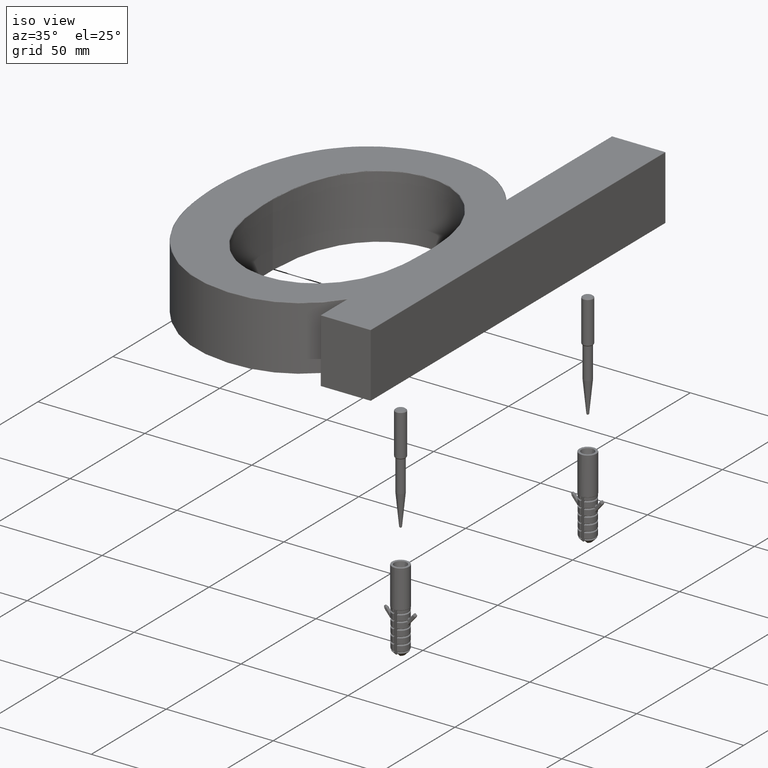
[diagram: clean part render]
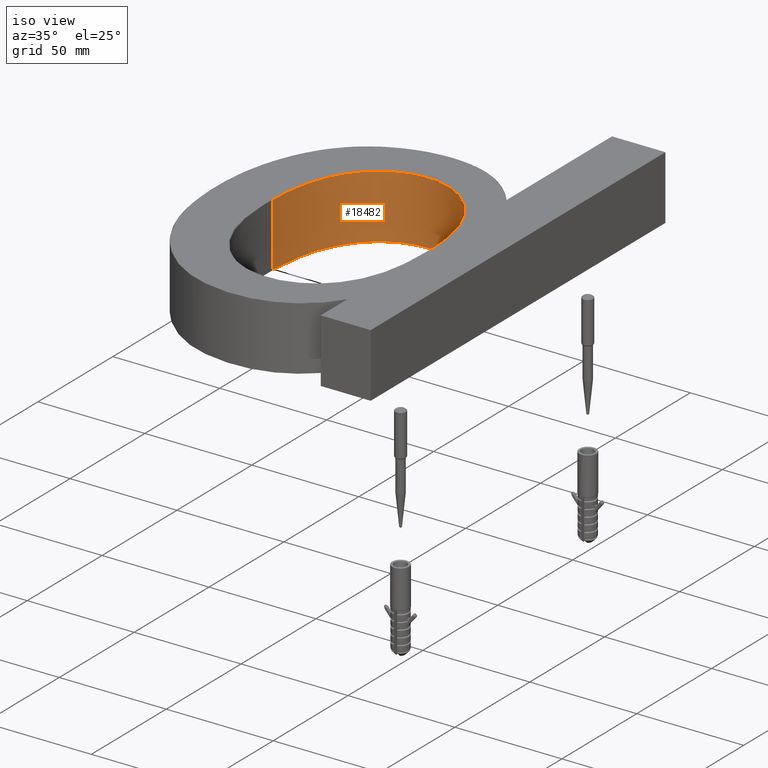
[diagram: same view with one face highlighted and labeled with its STEP entity id]
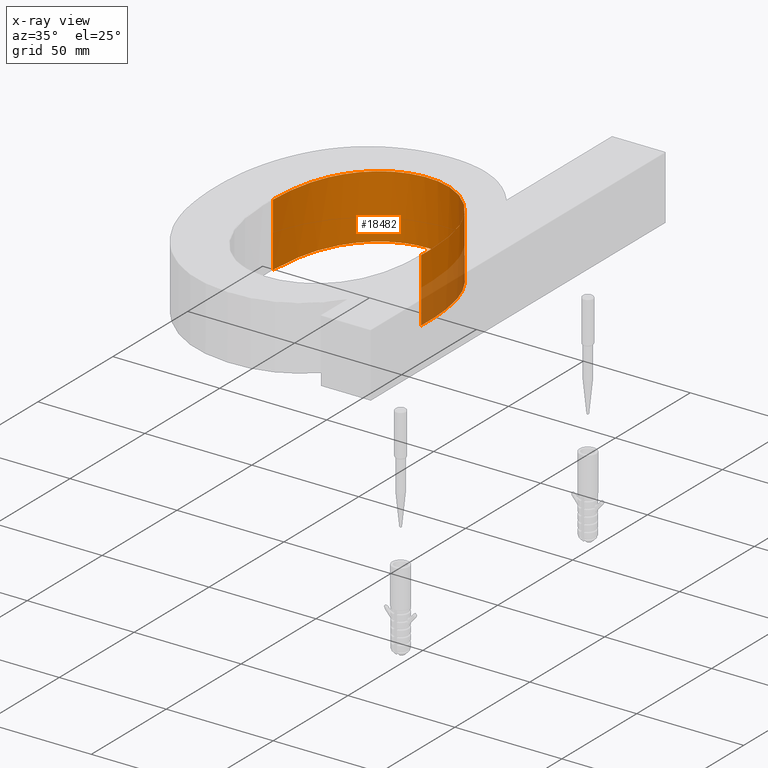
[diagram: x-ray of the same camera — body ghosted, the highlighted face saturated]
A machine part, iso view. The second image highlights one B-rep face of the part: STEP entity #18482.
The next image is the same camera in x-ray: the body ghosted, the highlighted face saturated — about 11% of this face is hidden behind the body in this view.
In plain terms, the highlighted face is a freeform B-spline surface patch.
Its self-contained STEP definition (entity closure, byte-faithful):
#195 = CARTESIAN_POINT ( 'NONE',  ( -88.55121358665108700, 78.92150280953875100, -28.00000000000000700 ) ) ;
#242 = CARTESIAN_POINT ( 'NONE',  ( -43.01471550697081600, 125.6372932712700000, 1.750000000000000000 ) ) ;
#346 = CARTESIAN_POINT ( 'NONE',  ( -13.13839991050411800, 74.32160863553029600, 1.750000000000000000 ) ) ;
#450 = CARTESIAN_POINT ( 'NONE',  ( -19.82097220692656900, 105.9758346695456600, 1.750000000000000200 ) ) ;
#651 = CARTESIAN_POINT ( 'NONE',  ( -85.93589010622399400, 96.76227666689362600, 1.750000000000000000 ) ) ;
#751 = CARTESIAN_POINT ( 'NONE',  ( -54.06665555420174500, 126.6566140659323200, 1.750000000000000200 ) ) ;
#780 = CARTESIAN_POINT ( 'NONE',  ( -13.21685557556140400, 67.69751859215078600, 2.000000000000000000 ) ) ;
#938 = CARTESIAN_POINT ( 'NONE',  ( -80.44095136586926700, 109.6073114590337700, 1.750000000000000000 ) ) ;
#1006 = CARTESIAN_POINT ( 'NONE',  ( -13.12877987927566500, 72.11315493876497800, 1.749999999999999800 ) ) ;
#1750 = CARTESIAN_POINT ( 'NONE',  ( -88.55121358665108700, 78.92150280953866600, -28.00000000000000400 ) ) ;
#1843 = CARTESIAN_POINT ( 'NONE',  ( -13.10140516814113600, 71.41197562951173000, -28.00000000000000000 ) ) ;
#2032 = CARTESIAN_POINT ( 'NONE',  ( -17.80088930035981700, 103.4445459096869800, -28.00000000000000000 ) ) ;
#2086 = CARTESIAN_POINT ( 'NONE',  ( -60.94026703437781100, 127.2949652679679100, 1.750000000000000200 ) ) ;
#2129 = CARTESIAN_POINT ( 'NONE',  ( -14.30222629124179300, 90.34252962186965900, -28.00000000000000000 ) ) ;
#2359 = VERTEX_POINT ( 'NONE', #18363 ) ;
#2507 = B_SPLINE_CURVE_WITH_KNOTS ( 'NONE', 3,
 ( #23917, #1750, #8579, #15555, #19853, #4171, #15253, #6317, #2032, #2129, #22042, #1843, #13395 ),
 .UNSPECIFIED., .F., .F.,
 ( 4, 1, 1, 1, 1, 1, 1, 1, 1, 1, 4 ),
 ( 0.4999999999999997800, 0.5255782494823841900, 0.5766113498136231600, 0.6444400147742848100, 0.7011712018983389200, 0.7680112470840235700, 0.8260361325642644500, 0.8804142102444568700, 0.9271135811354428400, 0.9623182922084826400, 1.000000000000000000 ),
 .UNSPECIFIED. ) ;
#2699 = CARTESIAN_POINT ( 'NONE',  ( -13.90062079166255100, 86.17424500894550500, 1.750000000000000000 ) ) ;
#2814 = CARTESIAN_POINT ( 'NONE',  ( -13.46024627776417800, 81.75166539391646800, 1.749999999999999800 ) ) ;
#2912 = CARTESIAN_POINT ( 'NONE',  ( -82.92607234473464900, 105.0232386596946600, 1.750000000000000000 ) ) ;
#3116 = CARTESIAN_POINT ( 'NONE',  ( -64.78461189895355700, 123.8700722752638200, 1.750000000000000400 ) ) ;
#3220 = CARTESIAN_POINT ( 'NONE',  ( -45.18499708231100700, 126.1467002325042700, 1.750000000000000400 ) ) ;
#3309 = CARTESIAN_POINT ( 'NONE',  ( -53.32335346094215800, 126.7071925692494400, 1.750000000000000200 ) ) ;
#3883 = FACE_OUTER_BOUND ( 'NONE', #25611, .T. ) ;
#4171 = CARTESIAN_POINT ( 'NONE',  ( -60.94026703437781100, 127.2949652679679100, -28.00000000000000000 ) ) ;
#4510 = CARTESIAN_POINT ( 'NONE',  ( -85.76485645599449000, 100.5757633288716600, -28.00000000000000700 ) ) ;
#4515 = VECTOR ( 'NONE', #4605, 1000.000000000000000 ) ;
#4604 = CARTESIAN_POINT ( 'NONE',  ( -41.67111236451760400, 127.2365687190322500, -28.00000000000000700 ) ) ;
#4605 = DIRECTION ( 'NONE',  ( -0.0000000000000000000, -0.0000000000000000000, -1.000000000000000000 ) ) ;
#4691 = CARTESIAN_POINT ( 'NONE',  ( -88.06419268513740000, 86.45725767295238000, 1.750000000000000200 ) ) ;
#4819 = EDGE_CURVE ( 'NONE', #21728, #12233, #27422, .T. ) ;
#4932 = CARTESIAN_POINT ( 'NONE',  ( -27.82628181259754300, 116.6275600547041100, 1.750000000000000000 ) ) ;
#5111 = CARTESIAN_POINT ( 'NONE',  ( -88.30363601657522600, 82.28296670657742600, 1.750000000000000700 ) ) ;
#5220 = CARTESIAN_POINT ( 'NONE',  ( -78.44617893125568700, 112.7276115713982100, 1.750000000000000000 ) ) ;
#5314 = CARTESIAN_POINT ( 'NONE',  ( -64.10127272805408400, 124.1759788565631200, 1.750000000000000400 ) ) ;
#5514 = CARTESIAN_POINT ( 'NONE',  ( -47.37338572465159800, 126.5268258478376400, 1.750000000000000200 ) ) ;
#5577 = CARTESIAN_POINT ( 'NONE',  ( -13.15689898831596800, 69.90514822404995200, 1.750000000000000200 ) ) ;
#5769 = ORIENTED_EDGE ( 'NONE', *, *, #22928, .T. ) ;
#6091 = EDGE_CURVE ( 'NONE', #2359, #17232, #12488, .T. ) ;
#6317 = CARTESIAN_POINT ( 'NONE',  ( -26.51978001778810800, 116.8647303100702000, -28.00000000000000000 ) ) ;
#6562 = CARTESIAN_POINT ( 'NONE',  ( -13.10140516814113500, 71.41197562951173000, -28.00000000000000700 ) ) ;
#6653 = CARTESIAN_POINT ( 'NONE',  ( -88.63366732251958500, 76.40187421192901200, -28.00000000000000400 ) ) ;
#6750 = CARTESIAN_POINT ( 'NONE',  ( -88.63366732251957100, 76.40187421192911200, -28.00000000000000700 ) ) ;
#6850 = CARTESIAN_POINT ( 'NONE',  ( -88.55121358665108700, 78.92150280953875100, 1.750000000000000200 ) ) ;
#6898 = CARTESIAN_POINT ( 'NONE',  ( -34.84176823809929100, 122.1200098886502700, 1.750000000000000400 ) ) ;
#7091 = CARTESIAN_POINT ( 'NONE',  ( -14.33905667323460000, 89.09833389076536000, 1.750000000000000000 ) ) ;
#7288 = CARTESIAN_POINT ( 'NONE',  ( -56.28087120961826200, 126.4300365453944200, 1.750000000000000400 ) ) ;
#7473 = CARTESIAN_POINT ( 'NONE',  ( -80.82436054409979000, 108.9718154044100200, 1.750000000000000000 ) ) ;
#7543 = CARTESIAN_POINT ( 'NONE',  ( -13.21685557556140400, 67.69751859215078600, 1.750000000000000000 ) ) ;
#7576 = CARTESIAN_POINT ( 'NONE',  ( -76.60443204387344500, 115.0429320464503700, 1.750000000000000400 ) ) ;
#7685 = CARTESIAN_POINT ( 'NONE',  ( -51.07723304446555800, 126.7567332380663300, 1.750000000000000700 ) ) ;
#7744 = CARTESIAN_POINT ( 'NONE',  ( -13.12630954120951500, 73.21729555870175000, 1.750000000000000000 ) ) ;
#8579 = CARTESIAN_POINT ( 'NONE',  ( -88.06419268513741400, 86.45725767295235200, -28.00000000000000400 ) ) ;
#8905 = CARTESIAN_POINT ( 'NONE',  ( -17.80088930035981700, 103.4445459096869800, 1.750000000000000200 ) ) ;
#9046 = CARTESIAN_POINT ( 'NONE',  ( -16.47040921325550000, 97.73502435951668600, 1.750000000000000000 ) ) ;
#9141 = CARTESIAN_POINT ( 'NONE',  ( -28.89753266846092900, 117.6456405621159300, 1.750000000000000400 ) ) ;
#9333 = CARTESIAN_POINT ( 'NONE',  ( -17.19266652730741600, 99.85181252878329900, 1.749999999999999800 ) ) ;
#9434 = CARTESIAN_POINT ( 'NONE',  ( -13.19749798426802200, 77.29929087022962600, 1.750000000000001300 ) ) ;
#9838 = CARTESIAN_POINT ( 'NONE',  ( -48.84650003490996500, 126.6789391259385600, 1.750000000000000400 ) ) ;
#9934 = CARTESIAN_POINT ( 'NONE',  ( -73.39208135593209200, 118.1850649822349300, 1.750000000000000200 ) ) ;
#11175 = CARTESIAN_POINT ( 'NONE',  ( -41.67111236451760400, 127.2365687190322500, 1.750000000000000200 ) ) ;
#11276 = CARTESIAN_POINT ( 'NONE',  ( -13.21685557556140400, 67.69751859215078600, -28.00000000000000700 ) ) ;
#11310 = B_SPLINE_SURFACE_WITH_KNOTS ( 'NONE', 3, 1, ( 
 ( #28949, #11276 ),
 ( #15901, #6562 ),
 ( #27020, #13645 ),
 ( #15817, #22662 ),
 ( #8905, #17788 ),
 ( #24635, #20013 ),
 ( #11175, #4604 ),
 ( #2086, #18171 ),
 ( #24917, #17980 ),
 ( #22283, #4510 ),
 ( #4691, #20308 ),
 ( #6850, #195 ),
 ( #20204, #6750 ) ),
 .UNSPECIFIED., .F., .F., .F.,
 ( 4, 1, 1, 1, 1, 1, 1, 1, 1, 1, 4 ),
 ( 2, 2 ),
 ( -2.659861220166703800E-011, 0.03768170779151740200, 0.07288641886455712900, 0.1195857897555431100, 0.1739638674357355300, 0.2319887529159764300, 0.2988287981016610800, 0.3555599852257151400, 0.4233886501863767800, 0.4744217505176158700, 0.4999999999999997800 ),
 ( 0.0000000000000000000, 1.000000000000000000 ),
 .UNSPECIFIED. ) ;
#11318 = CARTESIAN_POINT ( 'NONE',  ( -32.36823598354556000, 120.4512522147639100, 1.749999999999999800 ) ) ;
#11417 = CARTESIAN_POINT ( 'NONE',  ( -40.15631657302969200, 124.7339673897362500, 1.749999999999999300 ) ) ;
#11991 = CARTESIAN_POINT ( 'NONE',  ( -57.73620515979490600, 126.1797250306048700, 1.750000000000000200 ) ) ;
#12082 = CARTESIAN_POINT ( 'NONE',  ( -88.63366732251891700, 76.40187421194922000, 1.750000000000000000 ) ) ;
#12186 = CARTESIAN_POINT ( 'NONE',  ( -60.60426008020276400, 125.4758442451465800, 1.750000000000000400 ) ) ;
#12233 = VERTEX_POINT ( 'NONE', #19296 ) ;
#12488 = LINE ( 'NONE', #780, #13927 ) ;
#13000 = EDGE_CURVE ( 'NONE', #12233, #19932, #21735, .T. ) ;
#13395 = CARTESIAN_POINT ( 'NONE',  ( -13.21685557556140400, 67.69751859215078600, -27.99999999999999600 ) ) ;
#13592 = CARTESIAN_POINT ( 'NONE',  ( -32.98008073086001000, 120.8848758823305600, 1.750000000000000200 ) ) ;
#13645 = CARTESIAN_POINT ( 'NONE',  ( -13.06763622333071200, 78.60303425089597300, -28.00000000000000700 ) ) ;
#13927 = VECTOR ( 'NONE', #24691, 1000.000000000000000 ) ;
#14103 = CARTESIAN_POINT ( 'NONE',  ( -66.77273509365566900, 122.8688004271437800, 1.750000000000000200 ) ) ;
#14172 = CARTESIAN_POINT ( 'NONE',  ( -13.21685557556140400, 67.69751859215078600, -27.99999999999999600 ) ) ;
#14194 = CARTESIAN_POINT ( 'NONE',  ( -88.51023719977595800, 79.34046201009060400, 1.750000000000000400 ) ) ;
#14491 = CARTESIAN_POINT ( 'NONE',  ( -87.69243022122962800, 88.16445509971276800, 1.750000000000000200 ) ) ;
#14610 = ORIENTED_EDGE ( 'NONE', *, *, #13000, .T. ) ;
#14824 = B_SPLINE_CURVE_WITH_KNOTS ( 'NONE', 3,
 ( #7543, #23650, #5577, #1006, #7744, #23472 ),
 .UNSPECIFIED., .F., .F.,
 ( 4, 2, 4 ),
 ( 0.0000000000000000000, 0.003312277320597533500, 0.006624554641195067000 ),
 .UNSPECIFIED. ) ;
#15046 = ORIENTED_EDGE ( 'NONE', *, *, #4819, .T. ) ;
#15253 = CARTESIAN_POINT ( 'NONE',  ( -41.67111236451760400, 127.2365687190322500, -28.00000000000000000 ) ) ;
#15555 = CARTESIAN_POINT ( 'NONE',  ( -85.76485645599449000, 100.5757633288716600, -28.00000000000000000 ) ) ;
#15817 = CARTESIAN_POINT ( 'NONE',  ( -14.30222629124179300, 90.34252962186965900, 1.750000000000000200 ) ) ;
#15858 = CARTESIAN_POINT ( 'NONE',  ( -13.15469935459380800, 75.81037120470286100, 1.750000000000000200 ) ) ;
#15901 = CARTESIAN_POINT ( 'NONE',  ( -13.10140516814113500, 71.41197562951173000, 1.750000000000000200 ) ) ;
#15949 = CARTESIAN_POINT ( 'NONE',  ( -18.51773468524595500, 103.3203027288684300, 1.750000000000000000 ) ) ;
#16331 = CARTESIAN_POINT ( 'NONE',  ( -72.26701158973979500, 119.1573992826887600, 1.750000000000000700 ) ) ;
#16434 = CARTESIAN_POINT ( 'NONE',  ( -85.09207901398315200, 99.55879118423612800, 1.750000000000000000 ) ) ;
#16621 = CARTESIAN_POINT ( 'NONE',  ( -81.56104257240632200, 107.6786532614558500, 1.750000000000000400 ) ) ;
#17232 = VERTEX_POINT ( 'NONE', #14172 ) ;
#17617 = EDGE_CURVE ( 'NONE', #19932, #17232, #2507, .T. ) ;
#17788 = CARTESIAN_POINT ( 'NONE',  ( -17.80088930035981700, 103.4445459096869800, -28.00000000000000700 ) ) ;
#17980 = CARTESIAN_POINT ( 'NONE',  ( -77.31024003046503900, 116.4273613312443300, -28.00000000000000700 ) ) ;
#18171 = CARTESIAN_POINT ( 'NONE',  ( -60.94026703437781100, 127.2949652679679100, -28.00000000000000700 ) ) ;
#18363 = CARTESIAN_POINT ( 'NONE',  ( -13.21685557556140400, 67.69751859215078600, 1.750000000000000000 ) ) ;
#18406 = CARTESIAN_POINT ( 'NONE',  ( -25.79460487677811300, 114.4841631207419400, 1.750000000000000200 ) ) ;
#18482 = ADVANCED_FACE ( 'NONE', ( #3883 ), #11310, .T. ) ;
#18503 = CARTESIAN_POINT ( 'NONE',  ( -15.62795436781258100, 94.87739868806525600, 1.749999999999999600 ) ) ;
#18692 = CARTESIAN_POINT ( 'NONE',  ( -81.91527470654656900, 107.0190409293393500, 1.750000000000000000 ) ) ;
#18794 = CARTESIAN_POINT ( 'NONE',  ( -69.91758804488915800, 120.9461077555189900, 1.750000000000000700 ) ) ;
#18888 = CARTESIAN_POINT ( 'NONE',  ( -88.17262806783904200, 83.75854932111047900, 1.750000000000000400 ) ) ;
#18984 = CARTESIAN_POINT ( 'NONE',  ( -68.69192247182651600, 121.7637661703622600, 1.750000000000000400 ) ) ;
#19296 = CARTESIAN_POINT ( 'NONE',  ( -88.63366732251891700, 76.40187421194922000, 1.750000000000000000 ) ) ;
#19853 = CARTESIAN_POINT ( 'NONE',  ( -77.31024003046503900, 116.4273613312443300, -28.00000000000000000 ) ) ;
#19932 = VERTEX_POINT ( 'NONE', #6653 ) ;
#20013 = CARTESIAN_POINT ( 'NONE',  ( -26.51978001778810800, 116.8647303100702000, -28.00000000000000700 ) ) ;
#20204 = CARTESIAN_POINT ( 'NONE',  ( -88.63366732251957100, 76.40187421192911200, 1.750000000000000200 ) ) ;
#20308 = CARTESIAN_POINT ( 'NONE',  ( -88.06419268513740000, 86.45725767295238000, -28.00000000000000700 ) ) ;
#20356 = CARTESIAN_POINT ( 'NONE',  ( -22.17005084627197000, 109.7658006220505100, 1.750000000000000200 ) ) ;
#20549 = CARTESIAN_POINT ( 'NONE',  ( -13.35034274043584900, 80.27128462485276800, 1.750000000000000900 ) ) ;
#20656 = CARTESIAN_POINT ( 'NONE',  ( -30.59429362299053800, 119.0857874024315400, 1.750000000000000200 ) ) ;
#20941 = CARTESIAN_POINT ( 'NONE',  ( -83.52973996030877400, 103.6738359333981200, 1.750000000000000000 ) ) ;
#21048 = CARTESIAN_POINT ( 'NONE',  ( -44.45910013111765100, 125.9945315697690500, 1.750000000000000000 ) ) ;
#21728 = VERTEX_POINT ( 'NONE', #23872 ) ;
#21735 = LINE ( 'NONE', #26922, #4515 ) ;
#22042 = CARTESIAN_POINT ( 'NONE',  ( -13.06763622333071200, 78.60303425089597300, -28.00000000000000000 ) ) ;
#22283 = CARTESIAN_POINT ( 'NONE',  ( -85.76485645599449000, 100.5757633288716600, 1.750000000000000200 ) ) ;
#22449 = ORIENTED_EDGE ( 'NONE', *, *, #6091, .F. ) ;
#22517 = CARTESIAN_POINT ( 'NONE',  ( -16.24886256468535400, 97.02147182128896900, 1.750000000000000400 ) ) ;
#22611 = CARTESIAN_POINT ( 'NONE',  ( -36.12495370023037800, 122.8617584384952000, 1.750000000000000200 ) ) ;
#22662 = CARTESIAN_POINT ( 'NONE',  ( -14.30222629124179300, 90.34252962186965900, -28.00000000000000700 ) ) ;
#22808 = ORIENTED_EDGE ( 'NONE', *, *, #17617, .T. ) ;
#22811 = CARTESIAN_POINT ( 'NONE',  ( -16.94254446857075500, 99.15081146067876700, 1.750000000000000400 ) ) ;
#22928 = EDGE_CURVE ( 'NONE', #2359, #21728, #14824, .T. ) ;
#23015 = CARTESIAN_POINT ( 'NONE',  ( -88.58560636992849900, 77.87052507778462000, 1.750000000000000200 ) ) ;
#23212 = CARTESIAN_POINT ( 'NONE',  ( -51.82606793375423100, 126.7574011245690700, 1.750000000000000200 ) ) ;
#23406 = CARTESIAN_POINT ( 'NONE',  ( -62.01662496255504900, 125.0205764867572600, 1.750000000000000400 ) ) ;
#23472 = CARTESIAN_POINT ( 'NONE',  ( -13.13839991050411800, 74.32160863553029600, 1.750000000000000000 ) ) ;
#23650 = CARTESIAN_POINT ( 'NONE',  ( -13.18254909395389300, 68.80128214507936900, 1.750000000000000000 ) ) ;
#23872 = CARTESIAN_POINT ( 'NONE',  ( -13.13839991050411800, 74.32160863553029600, 1.750000000000000000 ) ) ;
#23917 = CARTESIAN_POINT ( 'NONE',  ( -88.63366732251958500, 76.40187421192901200, -28.00000000000000400 ) ) ;
#24635 = CARTESIAN_POINT ( 'NONE',  ( -26.51978001778810800, 116.8647303100702000, 1.750000000000000200 ) ) ;
#24691 = DIRECTION ( 'NONE',  ( -0.0000000000000000000, -0.0000000000000000000, -1.000000000000000000 ) ) ;
#24776 = CARTESIAN_POINT ( 'NONE',  ( -31.17492331748415800, 119.5512807700696700, 1.750000000000000200 ) ) ;
#24865 = CARTESIAN_POINT ( 'NONE',  ( -38.78225150525445000, 124.1686912889941500, 1.749999999999999800 ) ) ;
#24917 = CARTESIAN_POINT ( 'NONE',  ( -77.31024003046503900, 116.4273613312443300, 1.750000000000000200 ) ) ;
#25066 = CARTESIAN_POINT ( 'NONE',  ( -23.02326011900317600, 111.0018403528537500, 1.750000000000000200 ) ) ;
#25567 = CARTESIAN_POINT ( 'NONE',  ( -66.11950417722562200, 123.2168222419118600, 1.750000000000000200 ) ) ;
#25611 = EDGE_LOOP ( 'NONE', ( #5769, #15046, #14610, #22808, #22449 ) ) ;
#25662 = CARTESIAN_POINT ( 'NONE',  ( -86.30080448719519400, 95.34870115875915500, 1.750000000000000000 ) ) ;
#26922 = CARTESIAN_POINT ( 'NONE',  ( -88.63366732251957100, 76.40187421192902700, 2.000000000000000000 ) ) ;
#27020 = CARTESIAN_POINT ( 'NONE',  ( -13.06763622333071200, 78.60303425089597300, 1.750000000000000200 ) ) ;
#27069 = CARTESIAN_POINT ( 'NONE',  ( -15.27053060218068700, 93.43853680386307300, 1.749999999999999800 ) ) ;
#27154 = CARTESIAN_POINT ( 'NONE',  ( -42.29473481409484500, 125.4317382550725900, 1.749999999999999100 ) ) ;
#27342 = CARTESIAN_POINT ( 'NONE',  ( -24.83441811651599800, 113.3586151244262400, 1.749999999999999800 ) ) ;
#27422 = B_SPLINE_CURVE_WITH_KNOTS ( 'NONE', 3,
 ( #346, #15858, #9434, #20549, #2814, #2699, #7091, #27069, #18503, #22517, #9046, #22811, #9333, #15949, #450, #20356, #25066, #27342, #18406, #4932, #9141, #20656, #24776, #11318, #13592, #6898, #22611, #24865, #11417, #27154, #242, #21048, #3220, #5514, #9838, #7685, #23212, #3309, #751, #7288, #11991, #12186, #23406, #5314, #3116, #25567, #14103, #18984, #18794, #16331, #9934, #7576, #5220, #938, #7473, #16621, #18692, #2912, #20941, #27642, #16434, #651, #25662, #27924, #14491, #18888, #5111, #14194, #23015, #12082 ),
 .UNSPECIFIED., .F., .F.,
 ( 4, 2, 2, 2, 2, 2, 2, 2, 2, 2, 2, 2, 2, 2, 2, 2, 2, 2, 2, 2, 2, 2, 2, 2, 2, 2, 2, 2, 2, 2, 2, 2, 2, 2, 4 ),
 ( 0.006624554641195067000, 0.01108995000514981200, 0.01555534536910455600, 0.02448613609701404500, 0.02895153146096880700, 0.03118422914294621100, 0.03341692682492361500, 0.04234771755283327900, 0.04681311291678808000, 0.05127850828074288800, 0.05574390364469769500, 0.05797660132667509900, 0.06020929900865251000, 0.06467469437260733900, 0.06914008973656216000, 0.07137278741853958500, 0.07360548510051701000, 0.07807088046447185900, 0.08030357814644925600, 0.08253627582842668100, 0.08700167119238153000, 0.09146706655633637900, 0.09369976423831380400, 0.09593246192029122900, 0.1003978572842460200, 0.1048632526482007900, 0.1137940433761104000, 0.1160267410580878600, 0.1182594387400652800, 0.1227248341040200800, 0.1271902294679749000, 0.1316556248319296900, 0.1405864155598393100, 0.1450518109237941000, 0.1495172062877488900 ),
 .UNSPECIFIED. ) ;
#27642 = CARTESIAN_POINT ( 'NONE',  ( -84.61282630108223700, 100.9416345063006000, 1.750000000000000400 ) ) ;
#27924 = CARTESIAN_POINT ( 'NONE',  ( -87.25127490203762200, 91.06919659510066400, 1.750000000000000200 ) ) ;
#28949 = CARTESIAN_POINT ( 'NONE',  ( -13.21685557556140400, 67.69751859215078600, 1.750000000000000200 ) ) ;